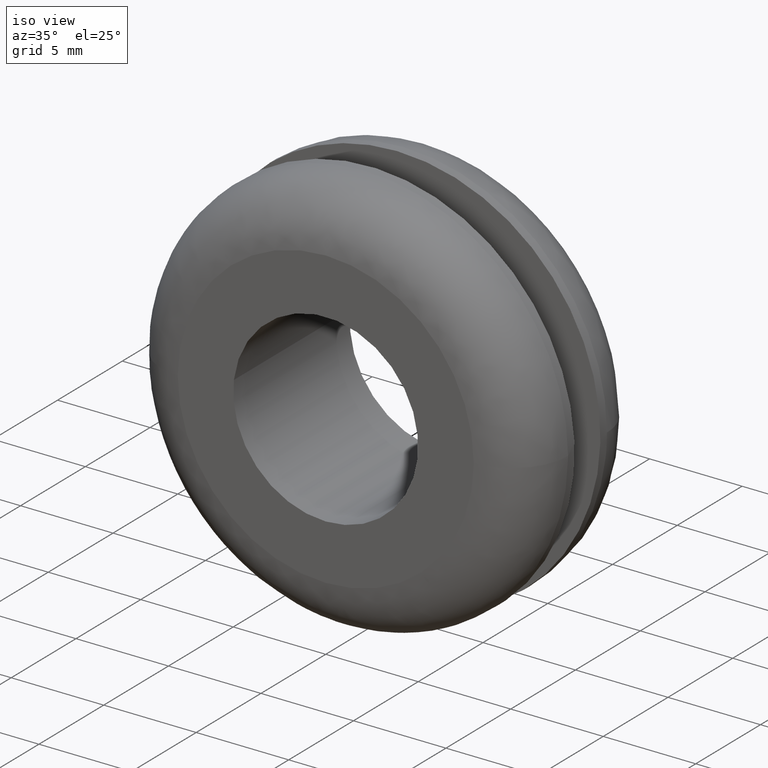
[diagram: clean part render]
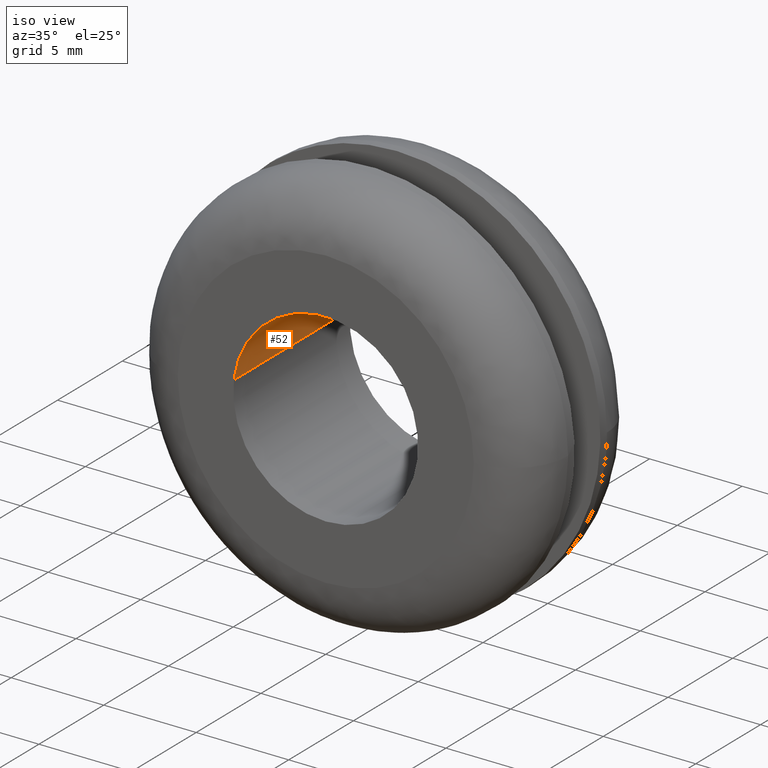
[diagram: same view with one face highlighted and labeled with its STEP entity id]
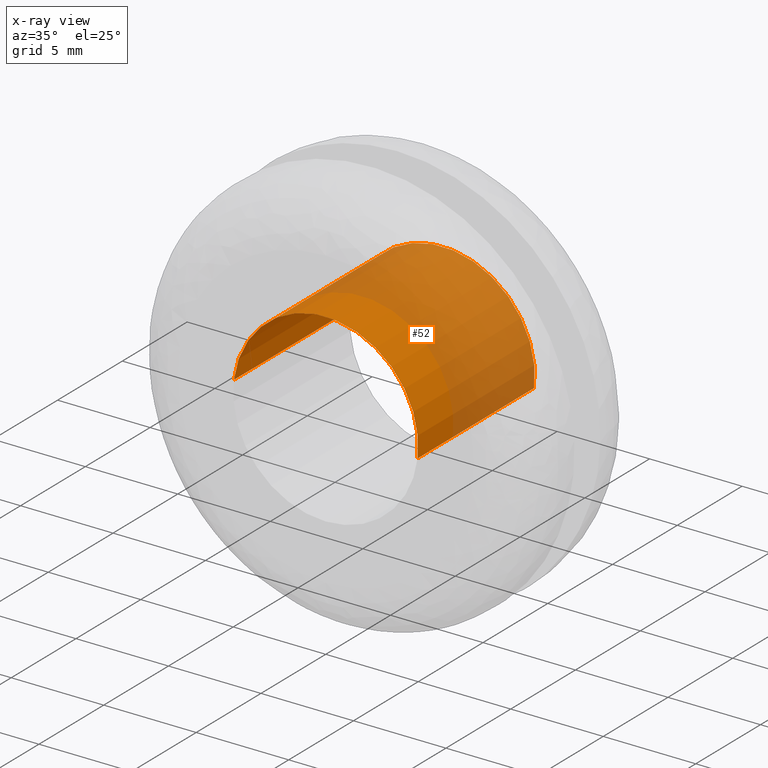
[diagram: x-ray of the same camera — body ghosted, the highlighted face saturated]
A machine part, iso view. The second image highlights one B-rep face of the part: STEP entity #52.
The next image is the same camera in x-ray: the body ghosted, the highlighted face saturated — about 64% of this face is hidden behind the body in this view.
In plain terms, the highlighted cylindrical surface (partial cylindrical patch) has radius 5 mm, axis along (0, 1, 0).
Its self-contained STEP definition (entity closure, byte-faithful):
#52=ADVANCED_FACE('',(#181),#180,.F.);
#180=CYLINDRICAL_SURFACE('',#371,5.00000000000E+000);
#181=FACE_OUTER_BOUND('',#372,.T.);
#368=CARTESIAN_POINT('',(3.11873698470E-015,9.22500000000E+000,3.29632553954E-014));
#369=DIRECTION('',(6.44980748637E-016,1.00000000000E+000,6.93110531903E-015));
#370=DIRECTION('',(-9.93009526364E-001,-1.77635683940E-016,1.18034234657E-001));
#371=AXIS2_PLACEMENT_3D('',#368,#369,#370);
#372=EDGE_LOOP('',(#466,#467,#468,#469));
#466=ORIENTED_EDGE('',*,*,#512,.T.);
#467=ORIENTED_EDGE('',*,*,#537,.T.);
#468=ORIENTED_EDGE('',*,*,#506,.F.);
#469=ORIENTED_EDGE('',*,*,#538,.F.);
#506=EDGE_CURVE('',#647,#654,#655,.T.);
#512=EDGE_CURVE('',#696,#688,#697,.T.);
#537=EDGE_CURVE('',#688,#654,#862,.T.);
#538=EDGE_CURVE('',#696,#647,#868,.T.);
#647=VERTEX_POINT('',#962);
#654=VERTEX_POINT('',#967);
#655=CIRCLE('',#971,4.99999999999E+000);
#688=VERTEX_POINT('',#991);
#696=VERTEX_POINT('',#997);
#697=CIRCLE('',#1001,4.99999999999E+000);
#862=(BOUNDED_CURVE() B_SPLINE_CURVE(1,(#1107,#1108),.UNSPECIFIED.,.F.,.F.) B_SPLINE_CURVE_WITH_KNOTS((2,2),(8.33333343261E-002,9.16666664274E-001),.UNSPECIFIED.) CURVE() GEOMETRIC_REPRESENTATION_ITEM() RATIONAL_B_SPLINE_CURVE((1.00000000000E+000,1.00000000000E+000)) REPRESENTATION_ITEM('') );
#868=(BOUNDED_CURVE() B_SPLINE_CURVE(1,(#1109,#1110),.UNSPECIFIED.,.F.,.F.) B_SPLINE_CURVE_WITH_KNOTS((2,2),(8.33333333333E-002,9.16666666667E-001),.UNSPECIFIED.) CURVE() GEOMETRIC_REPRESENTATION_ITEM() RATIONAL_B_SPLINE_CURVE((7.50000000000E-001,7.50000000000E-001)) REPRESENTATION_ITEM('') );
#962=CARTESIAN_POINT('',(4.96494555452E+000,9.00000000000E+000,-5.91029306010E-001));
#967=CARTESIAN_POINT('',(-4.96504784763E+000,9.00000000000E+000,5.90169357593E-001));
#968=CARTESIAN_POINT('',(4.73932004752E-012,9.00000000000E+000,1.04236619336E-011));
#969=DIRECTION('',(1.32448161837E-014,-1.00000000000E+000,8.73492756815E-014));
#970=DIRECTION('',(-9.48227607545E-013,-8.73492756815E-014,-1.00000000000E+000));
#971=AXIS2_PLACEMENT_3D('',#968,#969,#970);
#991=CARTESIAN_POINT('',(-4.96504784763E+000,-9.37007096339E-016,5.90169357593E-001));
#997=CARTESIAN_POINT('',(4.96494555452E+000,-9.27760335470E-016,-5.91029306010E-001));
#998=CARTESIAN_POINT('',(4.62296867454E-012,-9.32370148532E-016,1.01727515300E-011));
#999=DIRECTION('',(4.61925527207E-018,-1.00000000000E+000,3.10044488150E-017));
#1000=DIRECTION('',(-9.24565979332E-013,-3.10044488150E-017,-1.00000000000E+000));
#1001=AXIS2_PLACEMENT_3D('',#998,#999,#1000);
#1107=CARTESIAN_POINT('',(-4.96504763182E+000,1.07215923917E-008,5.90171173284E-001));
#1108=CARTESIAN_POINT('',(-4.96504763182E+000,8.99999997416E+000,5.90171173284E-001));
#1109=CARTESIAN_POINT('',(4.96504763182E+000,-1.03620815632E-014,-5.90171173284E-001));
#1110=CARTESIAN_POINT('',(4.96504763182E+000,9.00000000000E+000,-5.90171173284E-001));